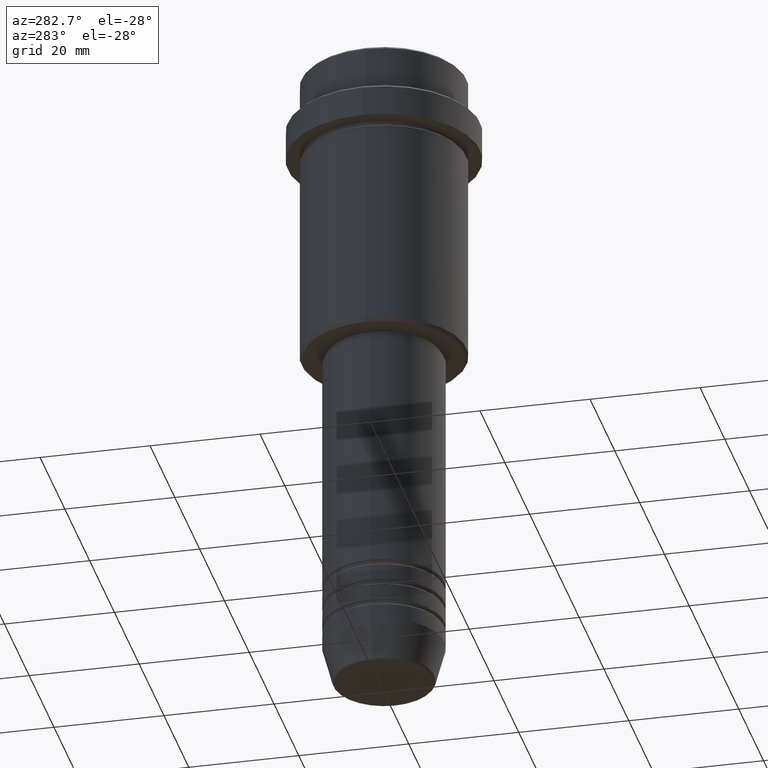
[diagram: clean part render]
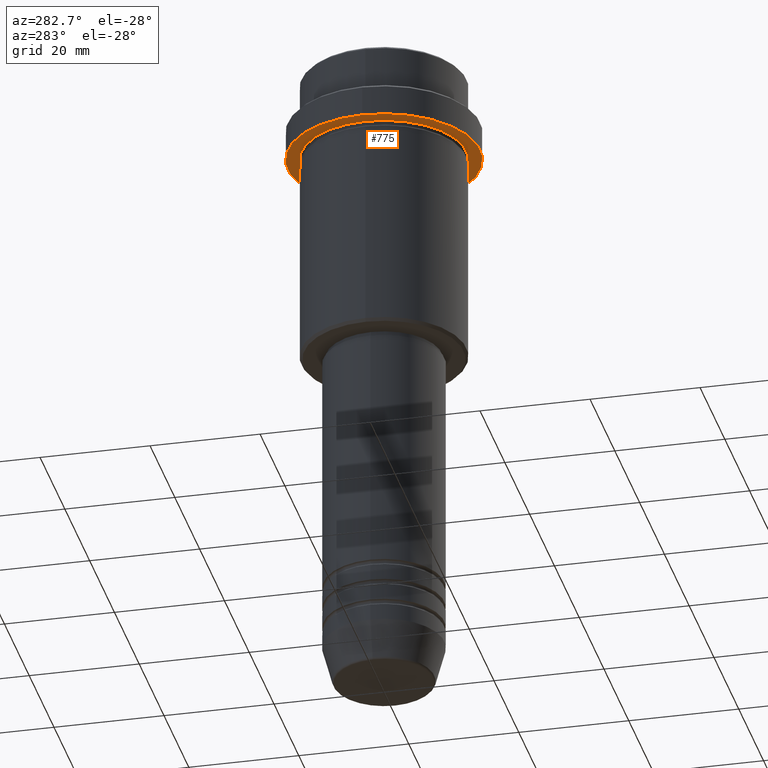
[diagram: same view with one face highlighted and labeled with its STEP entity id]
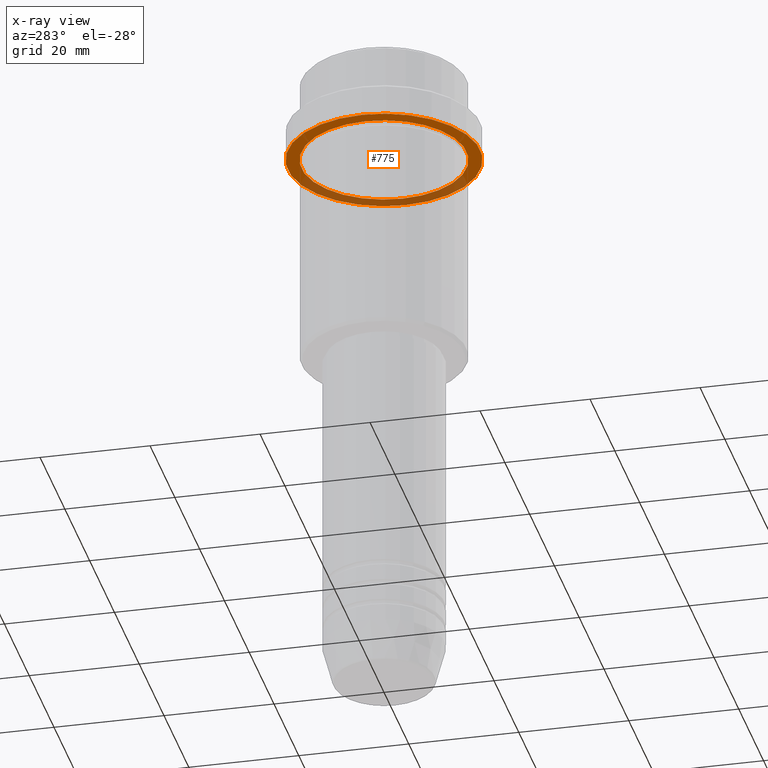
[diagram: x-ray of the same camera — body ghosted, the highlighted face saturated]
A machine part, auxiliary view. The second image highlights one B-rep face of the part: STEP entity #775.
The next image is the same camera in x-ray: the body ghosted, the highlighted face saturated — about 35% of this face is hidden behind the body in this view.
In plain terms, the highlighted planar face has unit normal (0, 0, -1).
Its self-contained STEP definition (entity closure, byte-faithful):
#44 = DIRECTION ( 'NONE',  ( 0.000000000000000000, 0.000000000000000000, -1.000000000000000000 ) ) ;
#86 = ORIENTED_EDGE ( 'NONE', *, *, #1025, .F. ) ;
#121 = DIRECTION ( 'NONE',  ( -0.000000000000000000, -0.000000000000000000, 1.000000000000000000 ) ) ;
#134 = EDGE_LOOP ( 'NONE', ( #993, #539 ) ) ;
#145 = AXIS2_PLACEMENT_3D ( 'NONE', #224, #1310, #672 ) ;
#155 = CARTESIAN_POINT ( 'NONE',  ( 0.000000000000000000, 0.000000000000000000, -15.00000000000000000 ) ) ;
#174 = AXIS2_PLACEMENT_3D ( 'NONE', #736, #44, #843 ) ;
#186 = CARTESIAN_POINT ( 'NONE',  ( -17.50000000000000000, 2.143131898507868248E-15, -15.00000000000000000 ) ) ;
#224 = CARTESIAN_POINT ( 'NONE',  ( 0.000000000000000000, 0.000000000000000000, -15.00000000000000000 ) ) ;
#302 = VERTEX_POINT ( 'NONE', #680 ) ;
#522 = VERTEX_POINT ( 'NONE', #1290 ) ;
#539 = ORIENTED_EDGE ( 'NONE', *, *, #1113, .T. ) ;
#620 = CIRCLE ( 'NONE', #1295, 14.99999999999999467 ) ;
#672 = DIRECTION ( 'NONE',  ( 1.000000000000000000, 0.000000000000000000, 0.000000000000000000 ) ) ;
#680 = CARTESIAN_POINT ( 'NONE',  ( 17.50000000000000000, 0.000000000000000000, -15.00000000000000000 ) ) ;
#711 = FACE_OUTER_BOUND ( 'NONE', #855, .T. ) ;
#713 = DIRECTION ( 'NONE',  ( 1.000000000000000000, 0.000000000000000000, 0.000000000000000000 ) ) ;
#724 = AXIS2_PLACEMENT_3D ( 'NONE', #1408, #765, #969 ) ;
#736 = CARTESIAN_POINT ( 'NONE',  ( 0.000000000000000000, 17.50000000000000000, -15.00000000000000000 ) ) ;
#765 = DIRECTION ( 'NONE',  ( -0.000000000000000000, -0.000000000000000000, 1.000000000000000000 ) ) ;
#775 = ADVANCED_FACE ( 'NONE', ( #1379, #711 ), #1282, .T. ) ;
#843 = DIRECTION ( 'NONE',  ( -1.000000000000000000, 0.000000000000000000, -0.000000000000000000 ) ) ;
#855 = EDGE_LOOP ( 'NONE', ( #86, #939 ) ) ;
#866 = AXIS2_PLACEMENT_3D ( 'NONE', #155, #1142, #713 ) ;
#884 = CARTESIAN_POINT ( 'NONE',  ( 0.000000000000000000, 0.000000000000000000, -15.00000000000000000 ) ) ;
#892 = VERTEX_POINT ( 'NONE', #1314 ) ;
#939 = ORIENTED_EDGE ( 'NONE', *, *, #1333, .F. ) ;
#946 = VERTEX_POINT ( 'NONE', #186 ) ;
#969 = DIRECTION ( 'NONE',  ( -1.000000000000000000, 0.000000000000000000, 0.000000000000000000 ) ) ;
#993 = ORIENTED_EDGE ( 'NONE', *, *, #1335, .T. ) ;
#1025 = EDGE_CURVE ( 'NONE', #302, #946, #1398, .T. ) ;
#1113 = EDGE_CURVE ( 'NONE', #522, #892, #620, .T. ) ;
#1114 = CIRCLE ( 'NONE', #724, 14.99999999999999467 ) ;
#1142 = DIRECTION ( 'NONE',  ( -0.000000000000000000, -0.000000000000000000, 1.000000000000000000 ) ) ;
#1276 = CIRCLE ( 'NONE', #145, 17.50000000000000000 ) ;
#1282 = PLANE ( 'NONE',  #174 ) ;
#1290 = CARTESIAN_POINT ( 'NONE',  ( 14.99999999999999467, 1.836970198721029194E-15, -15.00000000000000000 ) ) ;
#1295 = AXIS2_PLACEMENT_3D ( 'NONE', #884, #121, #1367 ) ;
#1310 = DIRECTION ( 'NONE',  ( -0.000000000000000000, -0.000000000000000000, 1.000000000000000000 ) ) ;
#1314 = CARTESIAN_POINT ( 'NONE',  ( -14.99999999999999467, 0.000000000000000000, -15.00000000000000000 ) ) ;
#1333 = EDGE_CURVE ( 'NONE', #946, #302, #1276, .T. ) ;
#1335 = EDGE_CURVE ( 'NONE', #892, #522, #1114, .T. ) ;
#1367 = DIRECTION ( 'NONE',  ( -1.000000000000000000, 0.000000000000000000, 0.000000000000000000 ) ) ;
#1379 = FACE_BOUND ( 'NONE', #134, .T. ) ;
#1398 = CIRCLE ( 'NONE', #866, 17.50000000000000000 ) ;
#1408 = CARTESIAN_POINT ( 'NONE',  ( 0.000000000000000000, 0.000000000000000000, -15.00000000000000000 ) ) ;